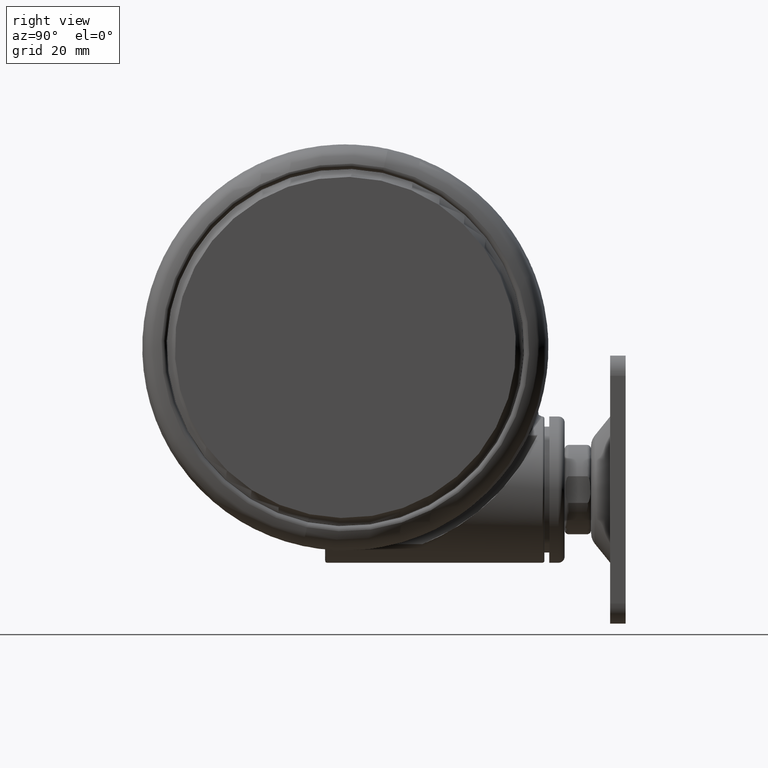
[diagram: clean part render]
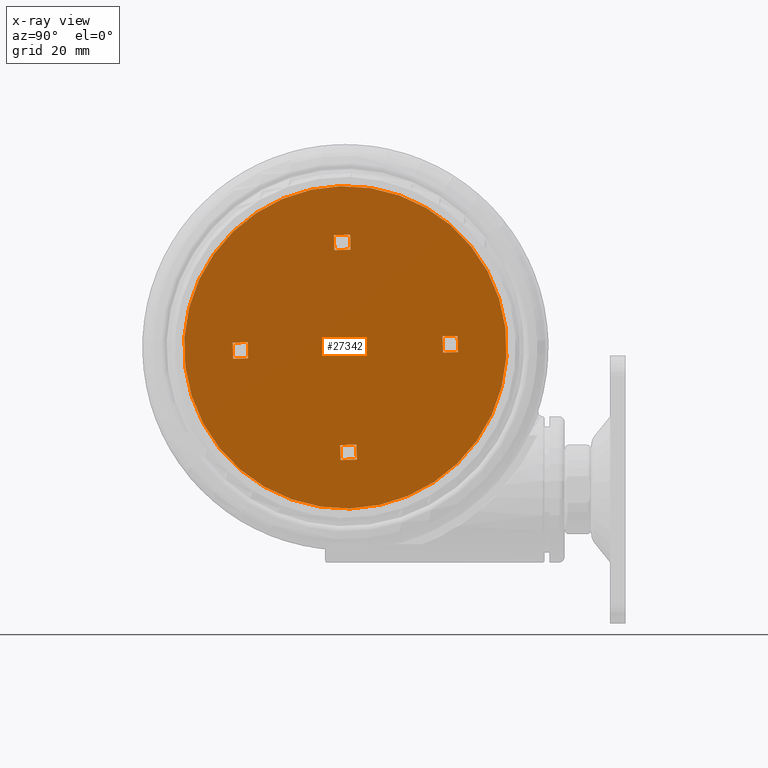
[diagram: x-ray — body ghosted, one internal face saturated and labeled with its STEP entity id]
A machine part, right view, then the same camera in x-ray: the body is ghosted and one INTERNAL B-rep face — a face not visible from any outside direction — is saturated and labeled: STEP entity #27342.
In plain terms, the highlighted planar face has unit normal (-1, 0, 0).
Its self-contained STEP definition (entity closure, byte-faithful):
#153 = LINE ( 'NONE', #13063, #44542 ) ;
#287 = VERTEX_POINT ( 'NONE', #4697 ) ;
#962 = VECTOR ( 'NONE', #13334, 1000.000000000000100 ) ;
#1332 = VECTOR ( 'NONE', #9404, 1000.000000000000100 ) ;
#2469 = DIRECTION ( 'NONE',  ( 0.2384309536921727600, -0.9711594515430722600, 1.807003620809174600E-016 ) ) ;
#2696 = VERTEX_POINT ( 'NONE', #46823 ) ;
#2876 = LINE ( 'NONE', #7242, #962 ) ;
#3588 = DIRECTION ( 'NONE',  ( 0.2384309536921693500, -0.9711594515430730400, 0.0000000000000000000 ) ) ;
#4697 = CARTESIAN_POINT ( 'NONE',  ( -27.37803569221569300, -4.662225406121069500, -63.39999999999989900 ) ) ;
#4889 = EDGE_CURVE ( 'NONE', #62931, #30989, #63307, .T. ) ;
#5302 = LINE ( 'NONE', #49812, #65740 ) ;
#6770 = DIRECTION ( 'NONE',  ( 0.9711594515430747000, 0.2384309536921625800, 1.807003620809174600E-016 ) ) ;
#7110 = VECTOR ( 'NONE', #55550, 1000.000000000000100 ) ;
#7242 = CARTESIAN_POINT ( 'NONE',  ( 7.664604814610119600, -22.83097182158370200, -63.39999999999989900 ) ) ;
#7471 = EDGE_CURVE ( 'NONE', #30481, #19627, #5302, .T. ) ;
#8200 = CARTESIAN_POINT ( 'NONE',  ( -23.78474572150631500, -3.780030877460070800, -63.39999999999989900 ) ) ;
#8386 = EDGE_CURVE ( 'NONE', #62143, #26989, #57824, .T. ) ;
#9046 = LINE ( 'NONE', #73521, #7110 ) ;
#9086 = LINE ( 'NONE', #13896, #55297 ) ;
#9339 = LINE ( 'NONE', #54465, #35688 ) ;
#9404 = DIRECTION ( 'NONE',  ( -0.9711594515430730400, -0.2384309536921693500, 1.807003620809174600E-016 ) ) ;
#9424 = ORIENTED_EDGE ( 'NONE', *, *, #44602, .T. ) ;
#9621 = ORIENTED_EDGE ( 'NONE', *, *, #8386, .T. ) ;
#9677 = VECTOR ( 'NONE', #3588, 1000.000000000000100 ) ;
#12091 = ORIENTED_EDGE ( 'NONE', *, *, #16653, .T. ) ;
#13063 = CARTESIAN_POINT ( 'NONE',  ( -36.55762740936388900, 32.72741347828703300, -63.39999999999989900 ) ) ;
#13292 = VECTOR ( 'NONE', #24274, 1000.000000000000100 ) ;
#13334 = DIRECTION ( 'NONE',  ( 0.9711594515430722600, 0.2384309536921727600, -0.0000000000000000000 ) ) ;
#13562 = LINE ( 'NONE', #39993, #15446 ) ;
#13806 = PLANE ( 'NONE',  #62301 ) ;
#13896 = CARTESIAN_POINT ( 'NONE',  ( 22.83090795256124000, 7.664654899763896800, -63.39999999999989900 ) ) ;
#13943 = EDGE_CURVE ( 'NONE', #2696, #47095, #23067, .T. ) ;
#14507 = VERTEX_POINT ( 'NONE', #27335 ) ;
#14578 = EDGE_CURVE ( 'NONE', #26989, #26010, #13562, .T. ) ;
#14946 = CARTESIAN_POINT ( 'NONE',  ( -8.546913297447501300, 26.42424800842444600, -63.39999999999989900 ) ) ;
#15064 = ORIENTED_EDGE ( 'NONE', *, *, #4889, .T. ) ;
#15097 = EDGE_CURVE ( 'NONE', #49881, #22667, #22140, .T. ) ;
#15157 = ORIENTED_EDGE ( 'NONE', *, *, #75301, .T. ) ;
#15446 = VECTOR ( 'NONE', #76209, 1000.000000000000100 ) ;
#16653 = EDGE_CURVE ( 'NONE', #23548, #287, #153, .T. ) ;
#16655 = CARTESIAN_POINT ( 'NONE',  ( 23.78463176732993000, 3.780017093591607800, -63.39999999999989900 ) ) ;
#17771 = CARTESIAN_POINT ( 'NONE',  ( -38.55508720334814400, -9.465715753513571000, -63.39999999999989900 ) ) ;
#17901 = DIRECTION ( 'NONE',  ( -0.2384309536921727600, 0.9711594515430722600, 1.807003620809174600E-016 ) ) ;
#18671 = CARTESIAN_POINT ( 'NONE',  ( 0.4768049302961523400, -1.942325795020461300, -63.39999999999989900 ) ) ;
#19306 = LINE ( 'NONE', #39433, #1332 ) ;
#19627 = VERTEX_POINT ( 'NONE', #29890 ) ;
#19856 = DIRECTION ( 'NONE',  ( -0.9711594515430722600, -0.2384309536921727600, 0.0000000000000000000 ) ) ;
#22140 = LINE ( 'NONE', #44673, #54255 ) ;
#22478 = AXIS2_PLACEMENT_3D ( 'NONE', #62851, #26646, #68905 ) ;
#22667 = VERTEX_POINT ( 'NONE', #55114 ) ;
#23067 = CIRCLE ( 'NONE', #22478, 39.70000000000000300 ) ;
#23548 = VERTEX_POINT ( 'NONE', #27772 ) ;
#23920 = EDGE_CURVE ( 'NONE', #30481, #50378, #56459, .T. ) ;
#24274 = DIRECTION ( 'NONE',  ( 0.2384309536921625800, -0.9711594515430747000, -0.0000000000000000000 ) ) ;
#24986 = EDGE_CURVE ( 'NONE', #26010, #42341, #9086, .T. ) ;
#25280 = ORIENTED_EDGE ( 'NONE', *, *, #13943, .T. ) ;
#25877 = VERTEX_POINT ( 'NONE', #45153 ) ;
#26010 = VERTEX_POINT ( 'NONE', #16655 ) ;
#26174 = ORIENTED_EDGE ( 'NONE', *, *, #49687, .F. ) ;
#26202 = EDGE_LOOP ( 'NONE', ( #9621, #34891, #26434, #37618 ) ) ;
#26434 = ORIENTED_EDGE ( 'NONE', *, *, #24986, .T. ) ;
#26586 = DIRECTION ( 'NONE',  ( 0.0000000000000000000, -0.0000000000000000000, 1.000000000000000000 ) ) ;
#26646 = DIRECTION ( 'NONE',  ( 0.0000000000000000000, -0.0000000000000000000, 1.000000000000000000 ) ) ;
#26989 = VERTEX_POINT ( 'NONE', #27268 ) ;
#27268 = CARTESIAN_POINT ( 'NONE',  ( 27.37792173803929800, 4.662211622252637100, -63.39999999999989900 ) ) ;
#27335 = CARTESIAN_POINT ( 'NONE',  ( 3.779967008437829200, -23.78469563635239600, -63.39999999999989900 ) ) ;
#27342 = ADVANCED_FACE ( 'NONE', ( #61696, #29517, #59813, #43697, #75872 ), #13806, .F. ) ;
#27562 = CARTESIAN_POINT ( 'NONE',  ( 17.24460620612193300, 45.93648831283329800, -63.39999999999989900 ) ) ;
#27772 = CARTESIAN_POINT ( 'NONE',  ( -26.42431187744700000, -8.546863212293359900, -63.39999999999989900 ) ) ;
#28718 = CARTESIAN_POINT ( 'NONE',  ( 22.83090795256124000, 7.664654899763896800, -63.39999999999989900 ) ) ;
#29517 = FACE_BOUND ( 'NONE', #78277, .T. ) ;
#29890 = CARTESIAN_POINT ( 'NONE',  ( 4.662161537098867800, -27.37798560706176300, -63.39999999999989900 ) ) ;
#30481 = VERTEX_POINT ( 'NONE', #74319 ) ;
#30573 = CARTESIAN_POINT ( 'NONE',  ( -22.83102190673762500, -7.664668683632360300, -63.39999999999989900 ) ) ;
#30961 = DIRECTION ( 'NONE',  ( 0.2384309536921727600, -0.9711594515430722600, 1.807003620809174600E-016 ) ) ;
#30989 = VERTEX_POINT ( 'NONE', #55206 ) ;
#31166 = DIRECTION ( 'NONE',  ( -0.2384309536921625800, 0.9711594515430747000, 0.0000000000000000000 ) ) ;
#31294 = EDGE_LOOP ( 'NONE', ( #33723, #25280 ) ) ;
#33483 = CARTESIAN_POINT ( 'NONE',  ( -0.4769188844724980800, 1.942312011151838400, -63.39999999999989900 ) ) ;
#33723 = ORIENTED_EDGE ( 'NONE', *, *, #44150, .T. ) ;
#34891 = ORIENTED_EDGE ( 'NONE', *, *, #14578, .T. ) ;
#34954 = CARTESIAN_POINT ( 'NONE',  ( 26.42419792327060800, 8.546849428424925700, -63.39999999999989900 ) ) ;
#35688 = VECTOR ( 'NONE', #42294, 1000.000000000000100 ) ;
#35729 = EDGE_CURVE ( 'NONE', #49881, #25877, #9339, .T. ) ;
#36427 = CARTESIAN_POINT ( 'NONE',  ( 7.664604814610119600, -22.83097182158370200, -63.39999999999989900 ) ) ;
#37327 = EDGE_CURVE ( 'NONE', #19627, #14507, #40178, .T. ) ;
#37618 = ORIENTED_EDGE ( 'NONE', *, *, #45121, .F. ) ;
#38009 = CARTESIAN_POINT ( 'NONE',  ( 1.942261925997972300, 0.4768550154500337800, -63.39999999999989900 ) ) ;
#38475 = VECTOR ( 'NONE', #44078, 1000.000000000000100 ) ;
#39433 = CARTESIAN_POINT ( 'NONE',  ( -0.4769188844725109600, 1.942312011151835300, -63.39999999999989900 ) ) ;
#39603 = DIRECTION ( 'NONE',  ( 0.9711594515430747000, 0.2384309536921625800, 1.807003620809174600E-016 ) ) ;
#39993 = CARTESIAN_POINT ( 'NONE',  ( 0.4768049302961665500, -1.942325795020457800, -63.39999999999989900 ) ) ;
#40178 = LINE ( 'NONE', #41861, #70425 ) ;
#40563 = EDGE_CURVE ( 'NONE', #14507, #50378, #2876, .T. ) ;
#41861 = CARTESIAN_POINT ( 'NONE',  ( -1.942375880174317400, -0.4768687993186572800, -63.39999999999989900 ) ) ;
#42294 = DIRECTION ( 'NONE',  ( 0.9711594515430722600, 0.2384309536921727600, 0.0000000000000000000 ) ) ;
#42341 = VERTEX_POINT ( 'NONE', #28718 ) ;
#43697 = FACE_BOUND ( 'NONE', #53019, .T. ) ;
#44078 = DIRECTION ( 'NONE',  ( -0.2384309536921727600, 0.9711594515430722600, 1.807003620809174600E-016 ) ) ;
#44150 = EDGE_CURVE ( 'NONE', #47095, #2696, #67591, .T. ) ;
#44321 = VECTOR ( 'NONE', #6770, 1000.000000000000100 ) ;
#44542 = VECTOR ( 'NONE', #31166, 1000.000000000000100 ) ;
#44602 = EDGE_CURVE ( 'NONE', #65972, #22667, #9046, .T. ) ;
#44673 = CARTESIAN_POINT ( 'NONE',  ( -1.942375880174317400, -0.4768687993186566700, -63.39999999999989900 ) ) ;
#45121 = EDGE_CURVE ( 'NONE', #62143, #42341, #19306, .T. ) ;
#45153 = CARTESIAN_POINT ( 'NONE',  ( -4.662275491275212700, 27.37797182319313900, -63.39999999999989900 ) ) ;
#46823 = CARTESIAN_POINT ( 'NONE',  ( 38.55497324917180200, 9.465701969644950300, -63.39999999999989900 ) ) ;
#47095 = VERTEX_POINT ( 'NONE', #17771 ) ;
#48976 = ORIENTED_EDGE ( 'NONE', *, *, #7471, .T. ) ;
#49474 = ORIENTED_EDGE ( 'NONE', *, *, #23920, .F. ) ;
#49687 = EDGE_CURVE ( 'NONE', #23548, #30989, #60422, .T. ) ;
#49812 = CARTESIAN_POINT ( 'NONE',  ( 6.604480440185012600, -26.90112369967741700, -63.39999999999989900 ) ) ;
#49881 = VERTEX_POINT ( 'NONE', #14946 ) ;
#50378 = VERTEX_POINT ( 'NONE', #36427 ) ;
#51420 = LINE ( 'NONE', #73247, #65603 ) ;
#52035 = AXIS2_PLACEMENT_3D ( 'NONE', #62781, #26586, #68845 ) ;
#52915 = ORIENTED_EDGE ( 'NONE', *, *, #35729, .T. ) ;
#53019 = EDGE_LOOP ( 'NONE', ( #52915, #62856, #9424, #71633 ) ) ;
#54255 = VECTOR ( 'NONE', #2469, 1000.000000000000100 ) ;
#54465 = CARTESIAN_POINT ( 'NONE',  ( -6.604594394361358300, 26.90110991580879200, -63.39999999999989900 ) ) ;
#54924 = ORIENTED_EDGE ( 'NONE', *, *, #37327, .T. ) ;
#55114 = CARTESIAN_POINT ( 'NONE',  ( -7.664718768786464400, 22.83095803771507800, -63.39999999999989900 ) ) ;
#55206 = CARTESIAN_POINT ( 'NONE',  ( -22.83102190673762500, -7.664668683632360300, -63.39999999999989900 ) ) ;
#55297 = VECTOR ( 'NONE', #68231, 1000.000000000000100 ) ;
#55426 = ORIENTED_EDGE ( 'NONE', *, *, #40563, .T. ) ;
#55429 = CARTESIAN_POINT ( 'NONE',  ( -3.780080962614174000, 23.78468185248377200, -63.39999999999989900 ) ) ;
#55550 = DIRECTION ( 'NONE',  ( -0.9711594515430722600, -0.2384309536921727600, -0.0000000000000000000 ) ) ;
#55723 = CARTESIAN_POINT ( 'NONE',  ( -9.656510601621169700, 39.33195089556011900, -63.39999999999989900 ) ) ;
#55902 = DIRECTION ( 'NONE',  ( -0.9711594515430722600, -0.2384309536921727600, 0.0000000000000000000 ) ) ;
#55996 = DIRECTION ( 'NONE',  ( -0.0000000000000000000, 0.0000000000000000000, -1.000000000000000000 ) ) ;
#56459 = LINE ( 'NONE', #38009, #38475 ) ;
#57824 = LINE ( 'NONE', #27562, #9677 ) ;
#59813 = FACE_BOUND ( 'NONE', #26202, .T. ) ;
#60422 = LINE ( 'NONE', #18671, #44321 ) ;
#61696 = FACE_BOUND ( 'NONE', #68785, .T. ) ;
#62143 = VERTEX_POINT ( 'NONE', #34954 ) ;
#62301 = AXIS2_PLACEMENT_3D ( 'NONE', #55723, #55996, #19856 ) ;
#62781 = CARTESIAN_POINT ( 'NONE',  ( -5.697708817253843700E-005, -6.891934311442637900E-006, -63.39999999999989900 ) ) ;
#62851 = CARTESIAN_POINT ( 'NONE',  ( -5.697708817253843700E-005, -6.891934311442637900E-006, -63.39999999999989900 ) ) ;
#62856 = ORIENTED_EDGE ( 'NONE', *, *, #66836, .T. ) ;
#62931 = VERTEX_POINT ( 'NONE', #8200 ) ;
#63307 = LINE ( 'NONE', #30573, #13292 ) ;
#64430 = LINE ( 'NONE', #33483, #76722 ) ;
#65603 = VECTOR ( 'NONE', #30961, 1000.000000000000100 ) ;
#65740 = VECTOR ( 'NONE', #55902, 1000.000000000000100 ) ;
#65972 = VERTEX_POINT ( 'NONE', #55429 ) ;
#66836 = EDGE_CURVE ( 'NONE', #25877, #65972, #51420, .T. ) ;
#67591 = CIRCLE ( 'NONE', #52035, 39.70000000000000300 ) ;
#68231 = DIRECTION ( 'NONE',  ( -0.2384309536921693500, 0.9711594515430730400, -0.0000000000000000000 ) ) ;
#68785 = EDGE_LOOP ( 'NONE', ( #12091, #15157, #15064, #26174 ) ) ;
#68845 = DIRECTION ( 'NONE',  ( -0.9711594515430722600, -0.2384309536921727400, 0.0000000000000000000 ) ) ;
#68905 = DIRECTION ( 'NONE',  ( -0.9711594515430722600, -0.2384309536921727400, 0.0000000000000000000 ) ) ;
#70425 = VECTOR ( 'NONE', #17901, 1000.000000000000100 ) ;
#71633 = ORIENTED_EDGE ( 'NONE', *, *, #15097, .F. ) ;
#73247 = CARTESIAN_POINT ( 'NONE',  ( 1.942261925997972300, 0.4768550154500343900, -63.39999999999989900 ) ) ;
#73521 = CARTESIAN_POINT ( 'NONE',  ( -7.664718768786464400, 22.83095803771507800, -63.39999999999989900 ) ) ;
#74319 = CARTESIAN_POINT ( 'NONE',  ( 8.546799343271157300, -26.42426179229307000, -63.39999999999989900 ) ) ;
#75301 = EDGE_CURVE ( 'NONE', #287, #62931, #64430, .T. ) ;
#75872 = FACE_OUTER_BOUND ( 'NONE', #31294, .T. ) ;
#76209 = DIRECTION ( 'NONE',  ( -0.9711594515430730400, -0.2384309536921693500, 1.807003620809174600E-016 ) ) ;
#76722 = VECTOR ( 'NONE', #39603, 1000.000000000000100 ) ;
#78277 = EDGE_LOOP ( 'NONE', ( #48976, #54924, #55426, #49474 ) ) ;